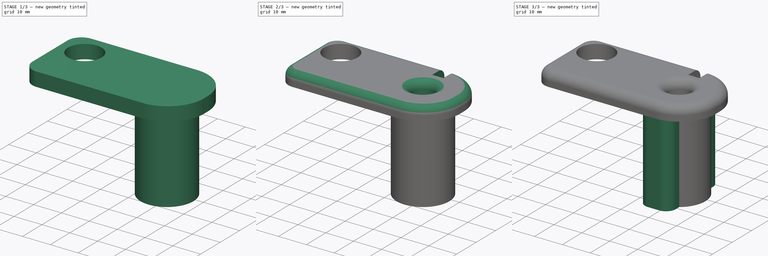
[diagram: build sequence overview — one tinted view per stage of 3, left to right]
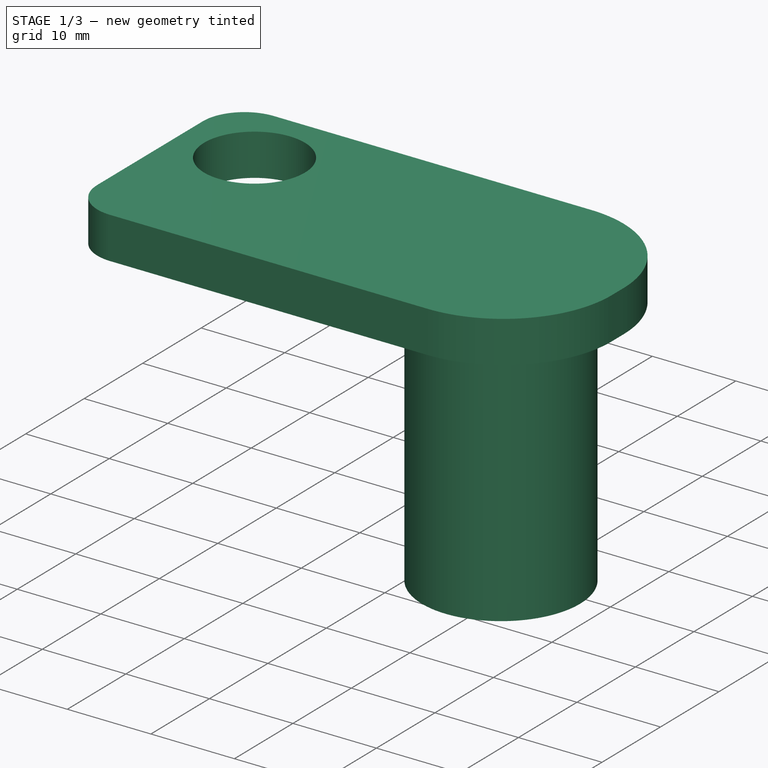
[diagram: stage 1 of 3 — iso view after this stage's code; geometry added in this stage tinted green]
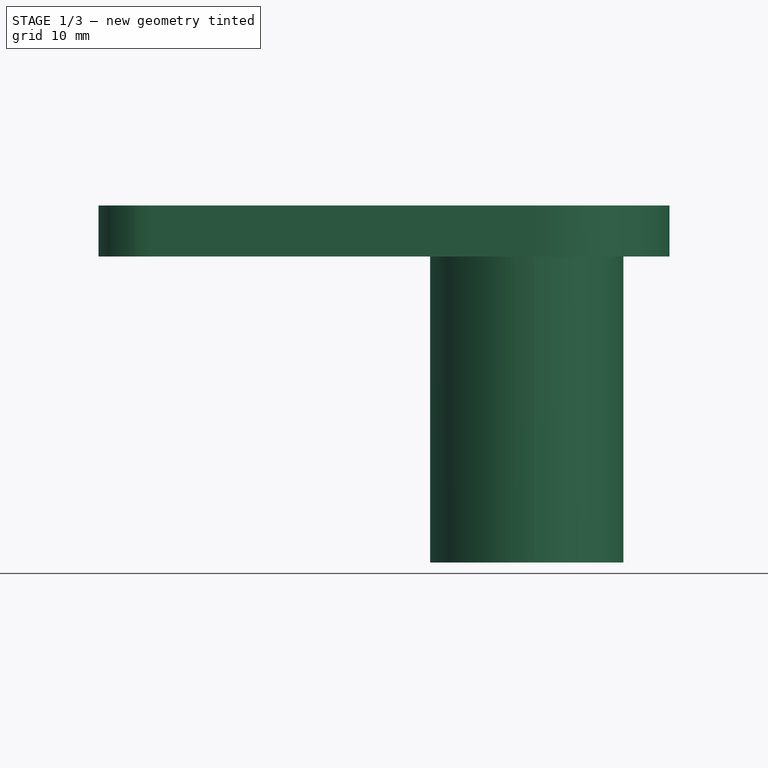
[diagram: stage 1 of 3 — front view after this stage's code; geometry added in this stage tinted green]
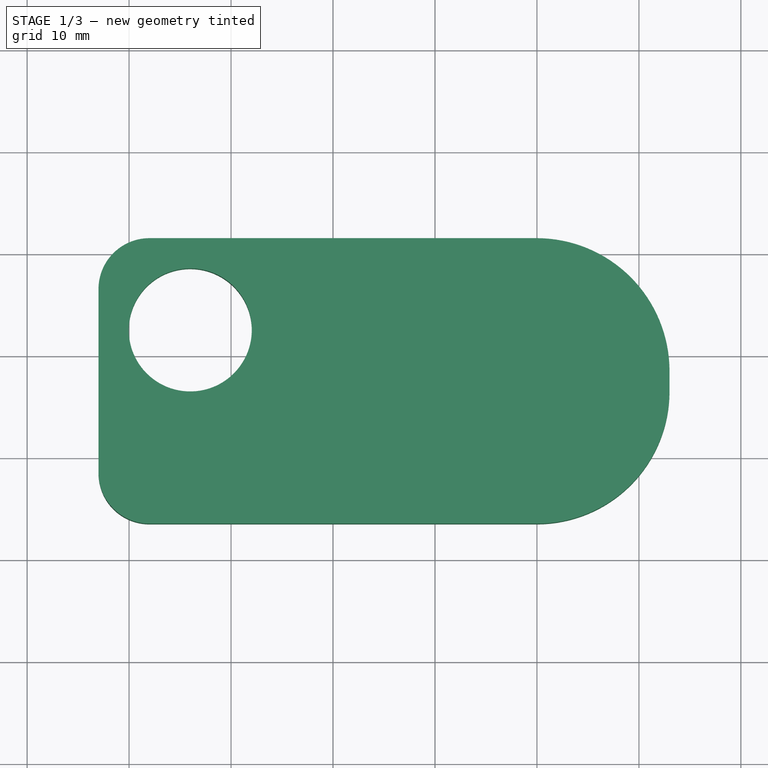
[diagram: stage 1 of 3 — top view after this stage's code; geometry added in this stage tinted green]
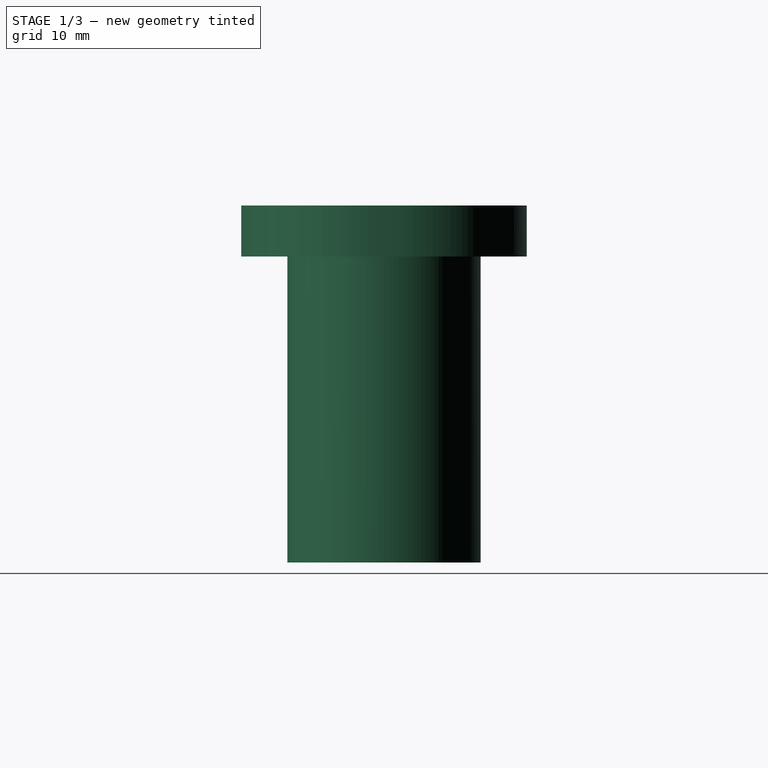
[diagram: stage 1 of 3 — right view after this stage's code; geometry added in this stage tinted green]
FCSTD DOCUMENT  (FreeCAD 0.20R29410 (Git))
Label: 4
License: All rights reserved
LicenseURL: http://en.wikipedia.org/wiki/All_rights_reserved
objects: Sketcher::SketchObject×5, PartDesign::Pad×3, PartDesign::Pocket×2, PartDesign::Fillet×1, PartDesign::Body×1
note: 18 computed .brp shape members not serialized (recipe doc carries the construction recipe); baked Part::Feature solids carry a one-line shape summary decoded from their .brp

FEATURE [Sketcher::SketchObject] Sketch
  FullyConstrained = false
  MapMode = 5
  Support = -> [XY_Plane]
  sketch-geometry (1):
    g0: Circle CenterX=-51 CenterY=27 CenterZ=0 NormalX=0 NormalY=0 NormalZ=1 AngleXU=0 Radius=9.47485
FEATURE [PartDesign::Pad] Pad
  Direction = (0,0,1)
  Length = 30
  Length2 = 10
  Profile = -> Sketch
  ReferenceAxis = -> Sketch [N_Axis]
  Type = 0
FEATURE [Sketcher::SketchObject] Sketch002
  FullyConstrained = false
  MapMode = 5
  Placement = pos=(0,0,30) rot=(0,0,1;0rad)
  sketch-geometry (9):
    g0: LineSegment StartX=-88 StartY=41 StartZ=0 EndX=-50.0384 EndY=41 EndZ=0
    g1: LineSegment StartX=-37 StartY=27.9616 StartZ=0 EndX=-37 EndY=26 EndZ=0
    g2: LineSegment StartX=-50 StartY=13 StartZ=0 EndX=-88 EndY=13 EndZ=0
    g3: LineSegment StartX=-93 StartY=18 StartZ=0 EndX=-93 EndY=36 EndZ=0
    g4: ArcOfCircle CenterX=-50.0384 CenterY=27.9616 CenterZ=0 NormalX=0 NormalY=0 NormalZ=1 AngleXU=0 Radius=13.0384 StartAngle=0 EndAngle=1.5708
    g5: ArcOfCircle CenterX=-50 CenterY=26 CenterZ=0 NormalX=0 NormalY=0 NormalZ=1 AngleXU=0 Radius=13 StartAngle=4.71239 EndAngle=6.28319
    g6: Circle CenterX=-84 CenterY=32 CenterZ=0 NormalX=0 NormalY=0 NormalZ=1 AngleXU=0 Radius=6.03505
    g7: ArcOfCircle CenterX=-88 CenterY=36 CenterZ=0 NormalX=0 NormalY=0 NormalZ=1 AngleXU=0 Radius=5 StartAngle=1.5708 EndAngle=3.14159
    g8: ArcOfCircle CenterX=-88 CenterY=18 CenterZ=0 NormalX=0 NormalY=0 NormalZ=1 AngleXU=0 Radius=5 StartAngle=3.14159 EndAngle=4.71239
  constraints (12):
    c: Horizontal(g0)
    c: Horizontal(g2)
    c: Vertical(g1)
    c: Vertical(g3)
    c: Tangent(g0,g4) = 1.5708
    c: Tangent(g1,g4) = 1.5708
    c: Tangent(g2,g5) = 1.5708
    c: Tangent(g1,g5) = 1.5708
    c: Tangent(g0,g7) = 1.5708
    c: Tangent(g3,g7) = 1.5708
    c: Tangent(g3,g8) = 1.5708
    c: Tangent(g2,g8) = 1.5708
FEATURE [PartDesign::Pad] Pad001
  BaseFeature = -> Pad
  Direction = (0,0,1)
  Length = 5
  Length2 = 10
  Profile = -> Sketch002
  ReferenceAxis = -> Sketch002 [N_Axis]
  Type = 0
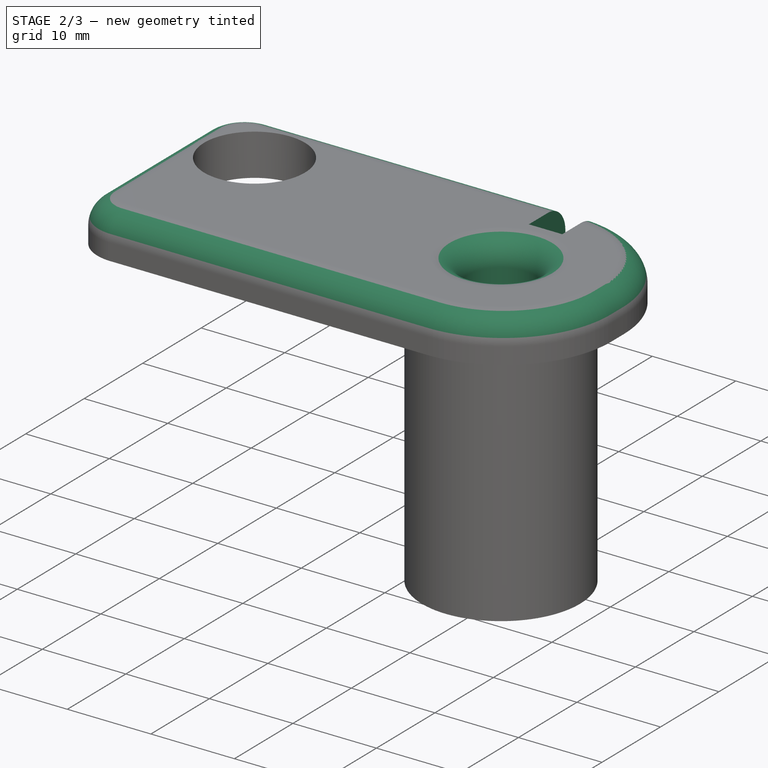
[diagram: stage 2 of 3 — iso view after this stage's code; geometry added in this stage tinted green]
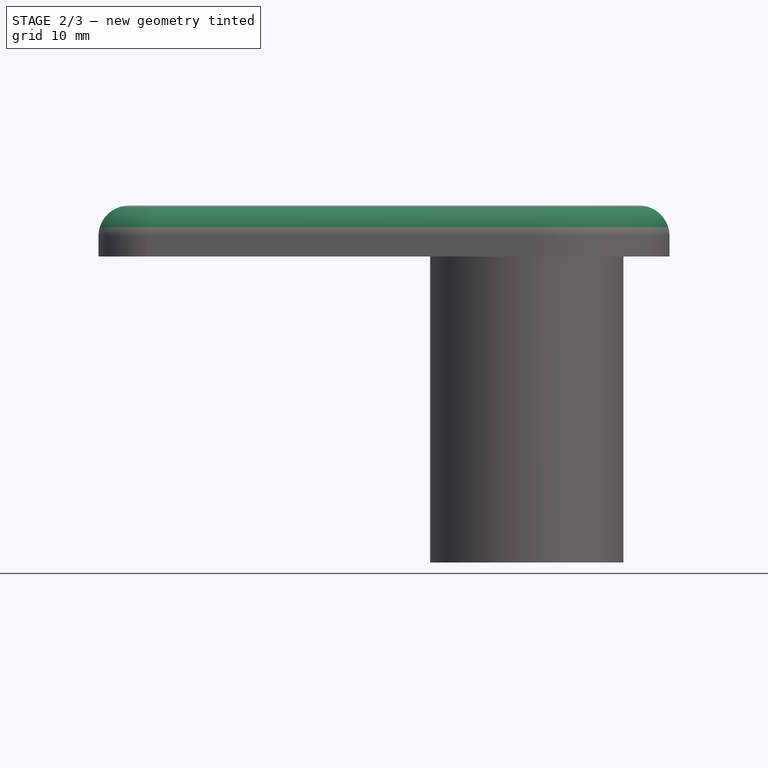
[diagram: stage 2 of 3 — front view after this stage's code; geometry added in this stage tinted green]
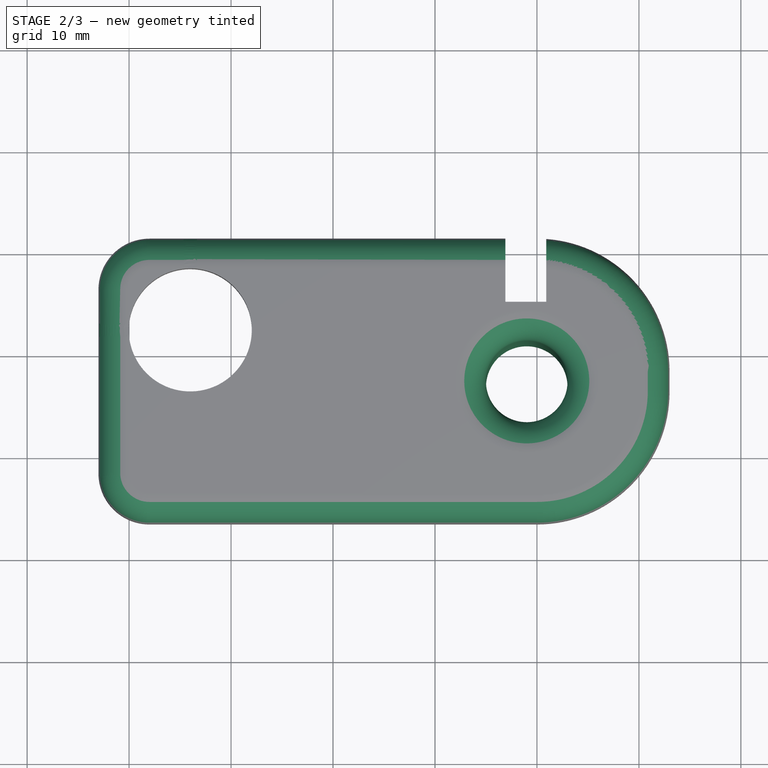
[diagram: stage 2 of 3 — top view after this stage's code; geometry added in this stage tinted green]
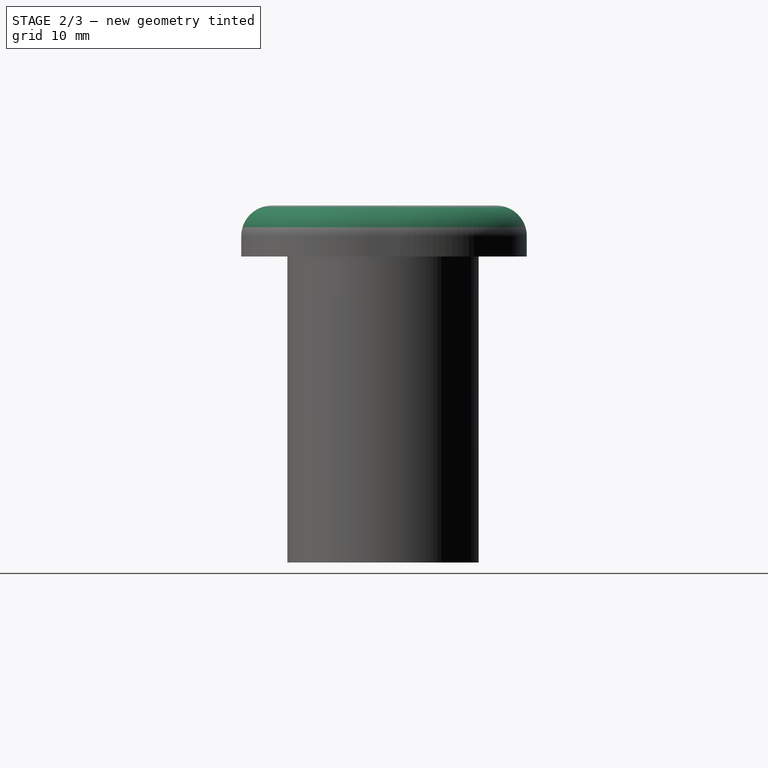
[diagram: stage 2 of 3 — right view after this stage's code; geometry added in this stage tinted green]
FEATURE [Sketcher::SketchObject] Sketch004
  FullyConstrained = false
  MapMode = 5
  Placement = pos=(0,0,0) rot=(1,0,0;3.14159rad)
  Support = -> [Pad001]
  sketch-geometry (5):
    g0: Circle CenterX=-51 CenterY=-27 CenterZ=0 NormalX=0 NormalY=0 NormalZ=1 AngleXU=0 Radius=4
    g1: LineSegment StartX=-53.0924 StartY=-34.7583 StartZ=0 EndX=-49.0924 EndY=-34.7583 EndZ=0
    g2: LineSegment StartX=-49.0924 StartY=-34.7583 StartZ=0 EndX=-49.0924 EndY=-41 EndZ=0
    g3: LineSegment StartX=-49.0924 StartY=-41 StartZ=0 EndX=-53.0924 EndY=-41 EndZ=0
    g4: LineSegment StartX=-53.0924 StartY=-41 StartZ=0 EndX=-53.0924 EndY=-34.7583 EndZ=0
  constraints (8):
    c: Coincident(g1,g2)
    c: Coincident(g2,g3)
    c: Coincident(g3,g4)
    c: Coincident(g4,g1)
    c: Horizontal(g1)
    c: Horizontal(g3)
    c: Vertical(g2)
    c: Vertical(g4)
FEATURE [PartDesign::Pocket] Pocket
  BaseFeature = -> Pad001
  Direction = (0,0,1)
  Length = 50
  Length2 = 5
  Profile = -> Sketch004
  ReferenceAxis = -> Sketch004 [N_Axis]
  Type = 0
FEATURE [PartDesign::Fillet] Fillet
  Base = -> Pocket [Edge26,Edge25,Vertex22,Edge24,Edge23,Edge3,Edge29,Edge28,Edge30]
  BaseFeature = -> Pocket
  Radius = 3
  SupportTransform = false
  UseAllEdges = false
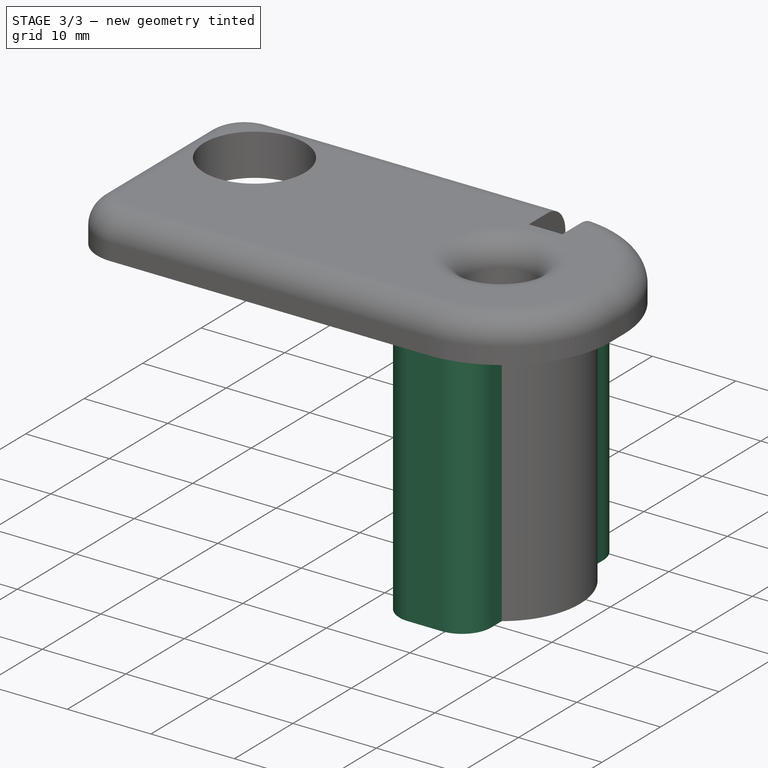
[diagram: stage 3 of 3 — iso view after this stage's code; geometry added in this stage tinted green]
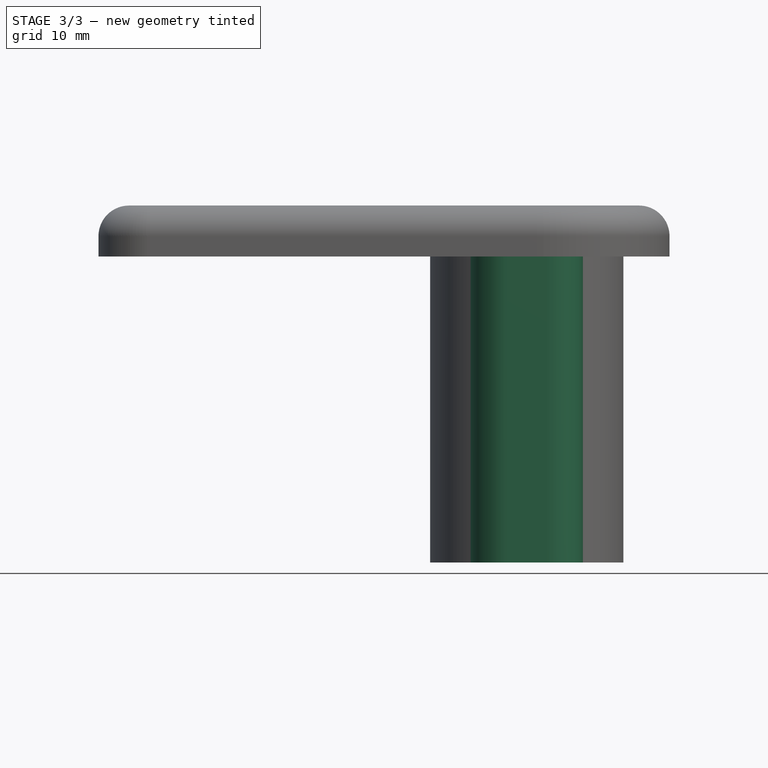
[diagram: stage 3 of 3 — front view after this stage's code; geometry added in this stage tinted green]
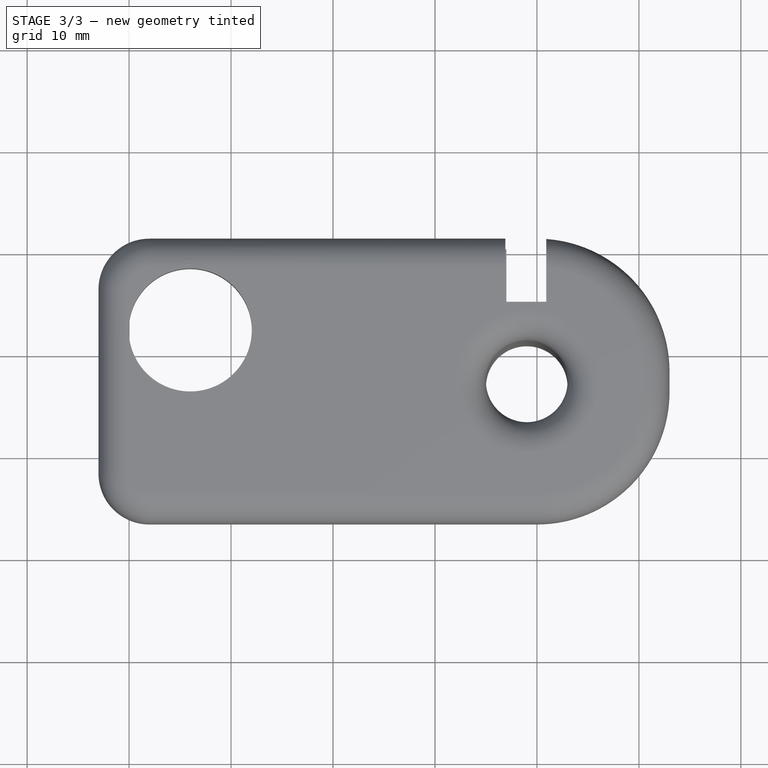
[diagram: stage 3 of 3 — top view after this stage's code; geometry added in this stage tinted green]
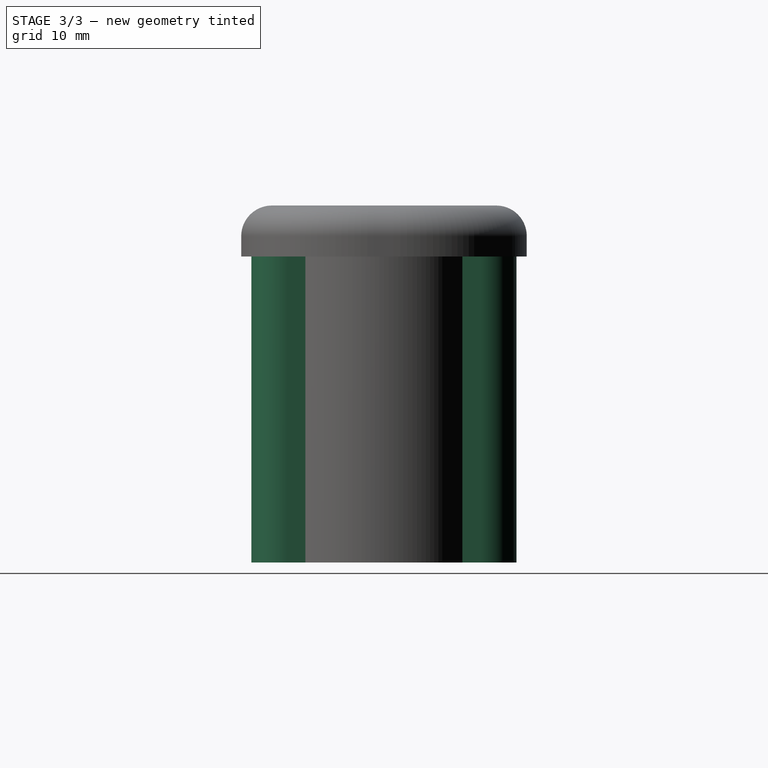
[diagram: stage 3 of 3 — right view after this stage's code; geometry added in this stage tinted green]
FEATURE [Sketcher::SketchObject] Sketch005
  FullyConstrained = false
  MapMode = 5
  Placement = pos=(0,0,30) rot=(1,0,0;3.14159rad)
  Support = -> [Fillet]
  sketch-geometry (12):
    g0: LineSegment StartX=-56.5 StartY=-20 StartZ=0 EndX=-45.5 EndY=-20 EndZ=0
    g1: LineSegment StartX=-45.5 StartY=-20 StartZ=0 EndX=-45.5 EndY=-17.5 EndZ=0
    g2: LineSegment StartX=-49 StartY=-14 StartZ=0 EndX=-53 EndY=-14 EndZ=0
    g3: LineSegment StartX=-56.5 StartY=-17.5 StartZ=0 EndX=-56.5 EndY=-20 EndZ=0
    g4: LineSegment StartX=-56.4564 StartY=-34 StartZ=0 EndX=-45.4564 EndY=-34 EndZ=0
    g5: LineSegment StartX=-45.4564 StartY=-34 StartZ=0 EndX=-45.4564 EndY=-36.5145 EndZ=0
    g6: LineSegment StartX=-48.9419 StartY=-40 StartZ=0 EndX=-52.9419 EndY=-40 EndZ=0
    g7: LineSegment StartX=-56.4564 StartY=-36.4855 StartZ=0 EndX=-56.4564 EndY=-34 EndZ=0
    g8: ArcOfCircle CenterX=-53 CenterY=-17.5 CenterZ=0 NormalX=0 NormalY=0 NormalZ=1 AngleXU=0 Radius=3.5 StartAngle=1.5708 EndAngle=3.14159
    g9: ArcOfCircle CenterX=-49 CenterY=-17.5 CenterZ=0 NormalX=0 NormalY=0 NormalZ=1 AngleXU=0 Radius=3.5 StartAngle=0 EndAngle=1.5708
    g10: ArcOfCircle CenterX=-52.9419 CenterY=-36.4855 CenterZ=0 NormalX=0 NormalY=0 NormalZ=1 AngleXU=0 Radius=3.51452 StartAngle=3.14159 EndAngle=4.71239
    g11: ArcOfCircle CenterX=-48.9419 CenterY=-36.5145 CenterZ=0 NormalX=0 NormalY=0 NormalZ=1 AngleXU=0 Radius=3.48548 StartAngle=4.71239 EndAngle=6.28319
  constraints (20):
    c: Coincident(g0,g1)
    c: Coincident(g3,g0)
    c: Horizontal(g0)
    c: Horizontal(g2)
    c: Vertical(g1)
    c: Vertical(g3)
    c: Coincident(g4,g5)
    c: Coincident(g7,g4)
    c: Horizontal(g4)
    c: Horizontal(g6)
    c: Vertical(g5)
    c: Vertical(g7)
    c: Tangent(g2,g8) = -1.5708
    c: Tangent(g3,g8) = -1.5708
    c: Tangent(g2,g9) = -1.5708
    c: Tangent(g1,g9) = -1.5708
    c: Tangent(g7,g10) = 1.5708
    c: Tangent(g6,g10) = 1.5708
    c: Tangent(g6,g11) = 1.5708
    c: Tangent(g5,g11) = 1.5708
FEATURE [PartDesign::Pad] Pad002
  BaseFeature = -> Fillet
  Direction = (0,0,-1)
  Length = 30
  Length2 = 10
  Profile = -> Sketch005
  ReferenceAxis = -> Sketch005 [N_Axis]
  Type = 0
FEATURE [Sketcher::SketchObject] Sketch006
  FullyConstrained = false
  MapMode = 5
  Placement = pos=(0,0,-1.78e-14) rot=(1,0,0;3.14159rad)
  Support = -> [Pad002]
  sketch-geometry (4):
    g0: LineSegment StartX=-53 StartY=-34.7484 StartZ=0 EndX=-49 EndY=-34.7484 EndZ=0
    g1: LineSegment StartX=-49 StartY=-34.7484 StartZ=0 EndX=-49 EndY=-40 EndZ=0
    g2: LineSegment StartX=-49 StartY=-40 StartZ=0 EndX=-53 EndY=-40 EndZ=0
    g3: LineSegment StartX=-53 StartY=-40 StartZ=0 EndX=-53 EndY=-34.7484 EndZ=0
  constraints (8):
    c: Coincident(g0,g1)
    c: Coincident(g1,g2)
    c: Coincident(g2,g3)
    c: Coincident(g3,g0)
    c: Horizontal(g0)
    c: Horizontal(g2)
    c: Vertical(g1)
    c: Vertical(g3)
FEATURE [PartDesign::Pocket] Pocket001
  BaseFeature = -> Pad002
  Direction = (0,0,1)
  Length = 30
  Length2 = 5
  Profile = -> Sketch006
  ReferenceAxis = -> Sketch006 [N_Axis]
  Type = 0
FEATURE [PartDesign::Body] Body
  Group = -> [Sketch,Pad,Sketch002,Pad001,Sketch004,Pocket,Fillet,Sketch005,Pad002,Sketch006,Pocket001]
  Origin = -> Origin
  Tip = -> Pocket001
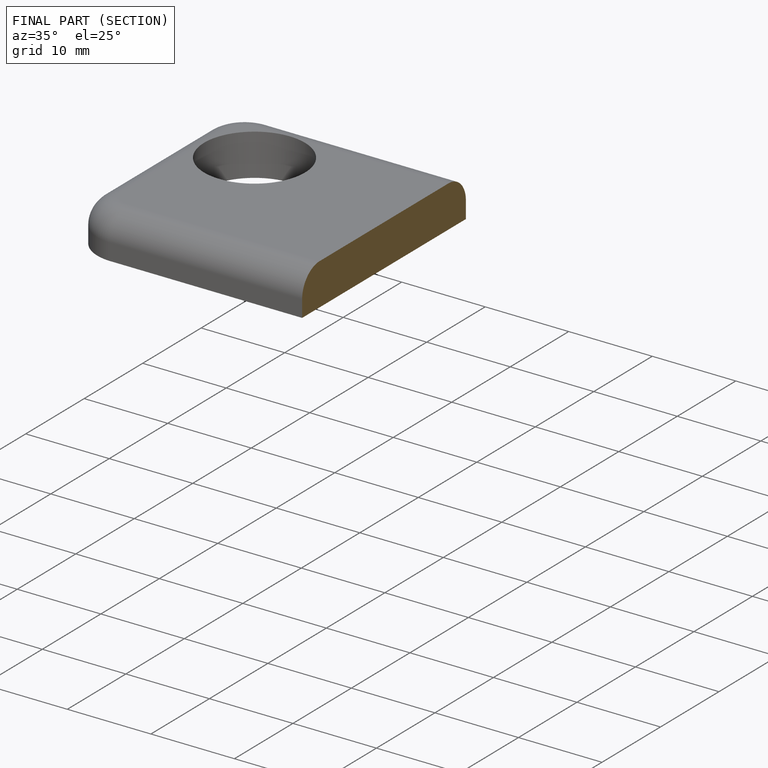
[diagram: finished part — half-section view (interior)]
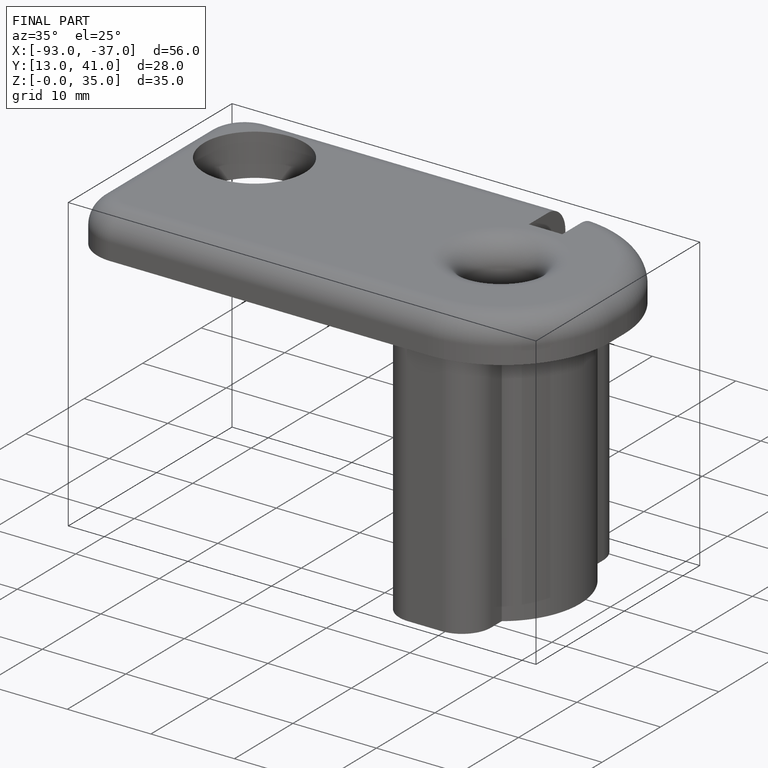
[diagram: finished part — iso view with bounding-box wireframe]
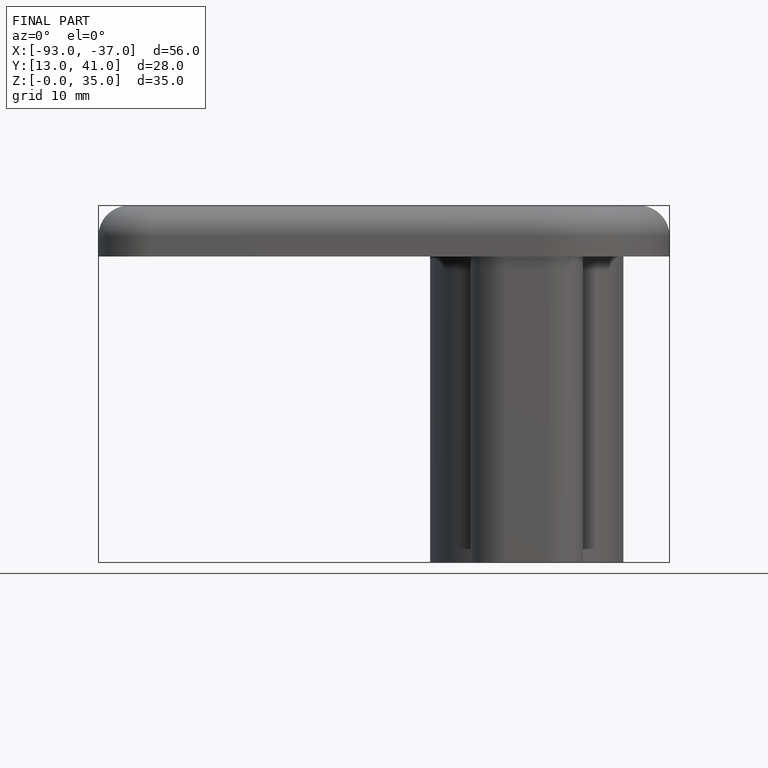
[diagram: finished part — front view with bounding-box wireframe]
